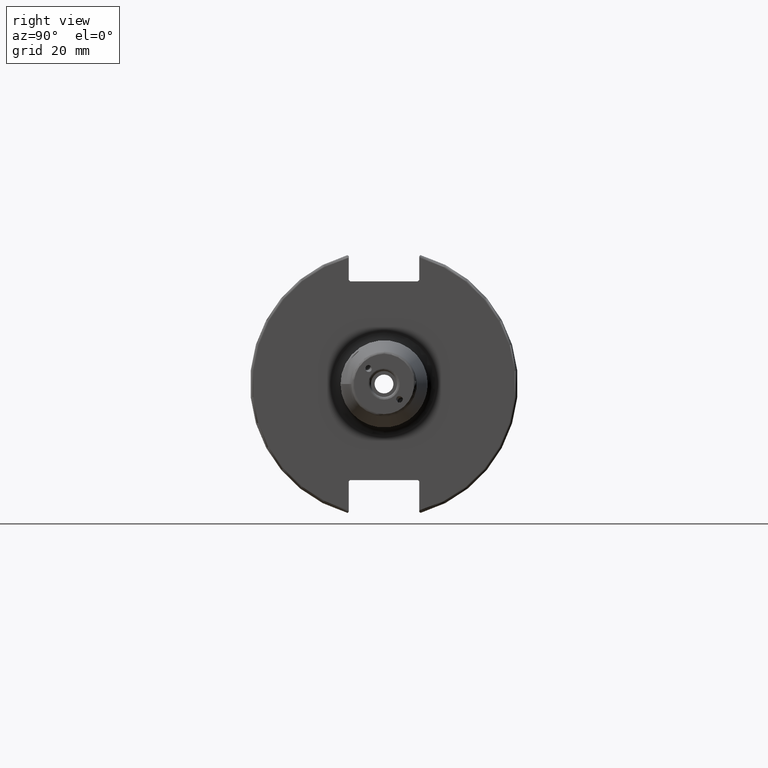
[diagram: clean part render]
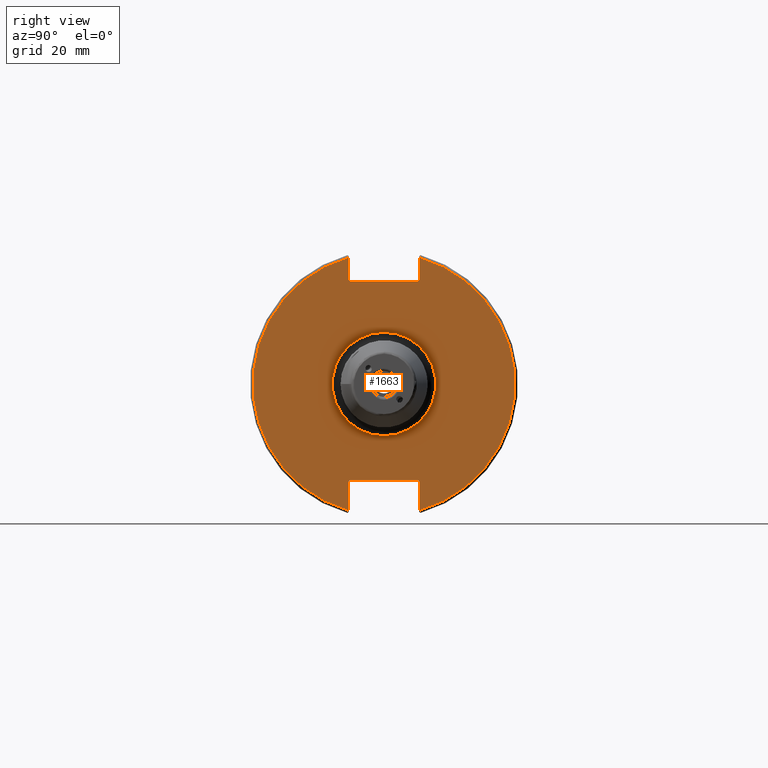
[diagram: same view with one face highlighted and labeled with its STEP entity id]
A machine part, right view. The second image highlights one B-rep face of the part: STEP entity #1663.
In plain terms, the highlighted planar face has unit normal (1, 0, 0).
Its self-contained STEP definition (entity closure, byte-faithful):
#35=FACE_BOUND('',#313,.T.);
#57=PLANE('',#1800);
#133=CIRCLE('',#1797,19.);
#135=CIRCLE('',#1801,48.2125);
#136=CIRCLE('',#1802,48.2125);
#213=FACE_OUTER_BOUND('',#312,.T.);
#312=EDGE_LOOP('',(#1188,#1189,#1190,#1191,#1192,#1193,#1194,#1195,#1196,
#1197,#1198,#1199));
#313=EDGE_LOOP('',(#1200));
#478=LINE('',#2702,#581);
#479=LINE('',#2704,#582);
#480=LINE('',#2706,#583);
#481=LINE('',#2708,#584);
#482=LINE('',#2710,#585);
#483=LINE('',#2714,#586);
#484=LINE('',#2716,#587);
#485=LINE('',#2718,#588);
#486=LINE('',#2720,#589);
#487=LINE('',#2721,#590);
#581=VECTOR('',#2031,10.);
#582=VECTOR('',#2032,10.);
#583=VECTOR('',#2033,10.);
#584=VECTOR('',#2034,10.);
#585=VECTOR('',#2035,10.);
#586=VECTOR('',#2038,10.);
#587=VECTOR('',#2039,10.);
#588=VECTOR('',#2040,10.);
#589=VECTOR('',#2041,10.);
#590=VECTOR('',#2042,10.);
#706=VERTEX_POINT('',#2691);
#707=VERTEX_POINT('',#2698);
#708=VERTEX_POINT('',#2699);
#709=VERTEX_POINT('',#2701);
#710=VERTEX_POINT('',#2703);
#711=VERTEX_POINT('',#2705);
#712=VERTEX_POINT('',#2707);
#713=VERTEX_POINT('',#2709);
#714=VERTEX_POINT('',#2711);
#715=VERTEX_POINT('',#2713);
#716=VERTEX_POINT('',#2715);
#717=VERTEX_POINT('',#2717);
#718=VERTEX_POINT('',#2719);
#890=EDGE_CURVE('',#706,#706,#133,.T.);
#893=EDGE_CURVE('',#707,#708,#135,.T.);
#894=EDGE_CURVE('',#707,#709,#478,.T.);
#895=EDGE_CURVE('',#710,#709,#479,.T.);
#896=EDGE_CURVE('',#710,#711,#480,.T.);
#897=EDGE_CURVE('',#712,#711,#481,.T.);
#898=EDGE_CURVE('',#712,#713,#482,.T.);
#899=EDGE_CURVE('',#714,#713,#136,.T.);
#900=EDGE_CURVE('',#714,#715,#483,.T.);
#901=EDGE_CURVE('',#716,#715,#484,.T.);
#902=EDGE_CURVE('',#716,#717,#485,.T.);
#903=EDGE_CURVE('',#718,#717,#486,.T.);
#904=EDGE_CURVE('',#718,#708,#487,.T.);
#1188=ORIENTED_EDGE('',*,*,#893,.F.);
#1189=ORIENTED_EDGE('',*,*,#894,.T.);
#1190=ORIENTED_EDGE('',*,*,#895,.F.);
#1191=ORIENTED_EDGE('',*,*,#896,.T.);
#1192=ORIENTED_EDGE('',*,*,#897,.F.);
#1193=ORIENTED_EDGE('',*,*,#898,.T.);
#1194=ORIENTED_EDGE('',*,*,#899,.F.);
#1195=ORIENTED_EDGE('',*,*,#900,.T.);
#1196=ORIENTED_EDGE('',*,*,#901,.F.);
#1197=ORIENTED_EDGE('',*,*,#902,.T.);
#1198=ORIENTED_EDGE('',*,*,#903,.F.);
#1199=ORIENTED_EDGE('',*,*,#904,.T.);
#1200=ORIENTED_EDGE('',*,*,#890,.F.);
#1663=ADVANCED_FACE('',(#213,#35),#57,.T.);
#1797=AXIS2_PLACEMENT_3D('',#2693,#2020,#2021);
#1800=AXIS2_PLACEMENT_3D('',#2697,#2027,#2028);
#1801=AXIS2_PLACEMENT_3D('',#2700,#2029,#2030);
#1802=AXIS2_PLACEMENT_3D('',#2712,#2036,#2037);
#2020=DIRECTION('center_axis',(1.,0.,0.));
#2021=DIRECTION('ref_axis',(0.,-1.,-1.22464679914735E-16));
#2027=DIRECTION('center_axis',(1.,0.,0.));
#2028=DIRECTION('ref_axis',(0.,0.,-1.));
#2029=DIRECTION('center_axis',(-1.,0.,0.));
#2030=DIRECTION('ref_axis',(0.,1.,-6.12323399573677E-17));
#2031=DIRECTION('',(0.,0.,-1.));
#2032=DIRECTION('',(0.,0.707106781186549,0.707106781186546));
#2033=DIRECTION('',(0.,-1.,0.));
#2034=DIRECTION('',(0.,0.707106781186549,-0.707106781186546));
#2035=DIRECTION('',(0.,0.,1.));
#2036=DIRECTION('center_axis',(-1.,0.,0.));
#2037=DIRECTION('ref_axis',(0.,-1.,1.60812264967664E-16));
#2038=DIRECTION('',(0.,0.,1.));
#2039=DIRECTION('',(0.,-0.707106781186549,-0.707106781186546));
#2040=DIRECTION('',(0.,1.,0.));
#2041=DIRECTION('',(0.,-0.707106781186549,0.707106781186546));
#2042=DIRECTION('',(0.,0.,-1.));
#2691=CARTESIAN_POINT('',(19.05,-2.32682891837997E-15,-19.));
#2693=CARTESIAN_POINT('Origin',(19.05,0.,0.));
#2697=CARTESIAN_POINT('Origin',(19.05,0.,0.));
#2698=CARTESIAN_POINT('',(19.05,12.95,46.4407434937254));
#2699=CARTESIAN_POINT('',(19.05,12.95,-46.4407434937254));
#2700=CARTESIAN_POINT('Origin',(19.05,0.,0.));
#2701=CARTESIAN_POINT('',(19.05,12.95,38.219));
#2702=CARTESIAN_POINT('',(19.05,12.95,18.8595));
#2703=CARTESIAN_POINT('',(19.05,12.45,37.719));
#2704=CARTESIAN_POINT('',(19.05,0.0327499999999836,25.30175));
#2705=CARTESIAN_POINT('',(19.05,-12.45,37.719));
#2706=CARTESIAN_POINT('',(19.05,0.,37.719));
#2707=CARTESIAN_POINT('',(19.05,-12.95,38.219));
#2708=CARTESIAN_POINT('',(19.05,-0.0327499999999817,25.30175));
#2709=CARTESIAN_POINT('',(19.05,-12.95,46.4407434937254));
#2710=CARTESIAN_POINT('',(19.05,-12.95,18.8595));
#2711=CARTESIAN_POINT('',(19.05,-12.95,-46.4407434937254));
#2712=CARTESIAN_POINT('Origin',(19.05,0.,0.));
#2713=CARTESIAN_POINT('',(19.05,-12.95,-35.806));
#2714=CARTESIAN_POINT('',(19.05,-12.95,-17.653));
#2715=CARTESIAN_POINT('',(19.05,-12.45,-35.306));
#2716=CARTESIAN_POINT('',(19.05,-0.635999999999989,-23.492));
#2717=CARTESIAN_POINT('',(19.05,12.45,-35.306));
#2718=CARTESIAN_POINT('',(19.05,-3.33066907387547E-15,-35.306));
#2719=CARTESIAN_POINT('',(19.05,12.95,-35.806));
#2720=CARTESIAN_POINT('',(19.05,0.635999999999982,-23.492));
#2721=CARTESIAN_POINT('',(19.05,12.95,-17.653));